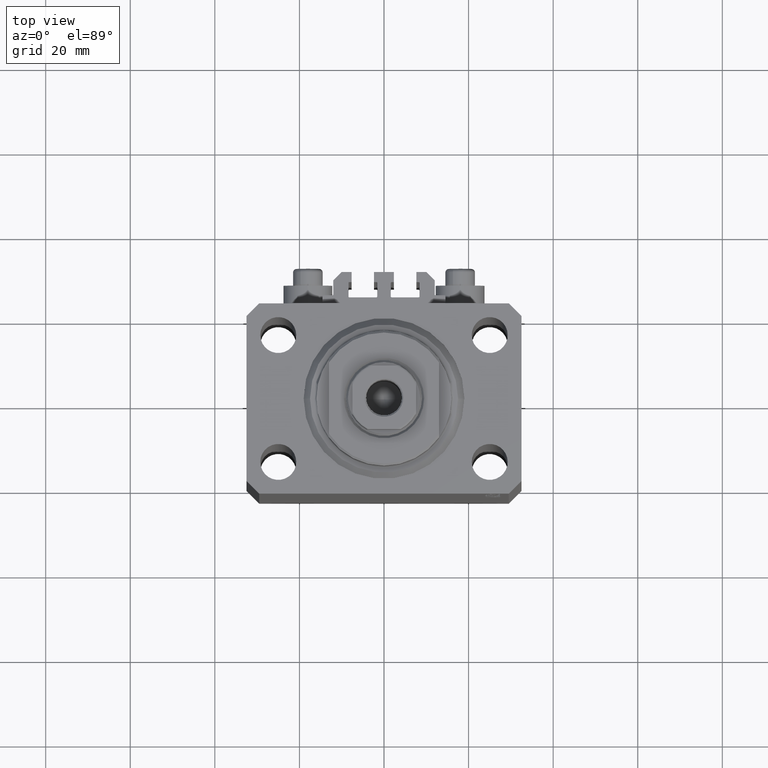
[diagram: clean part render]
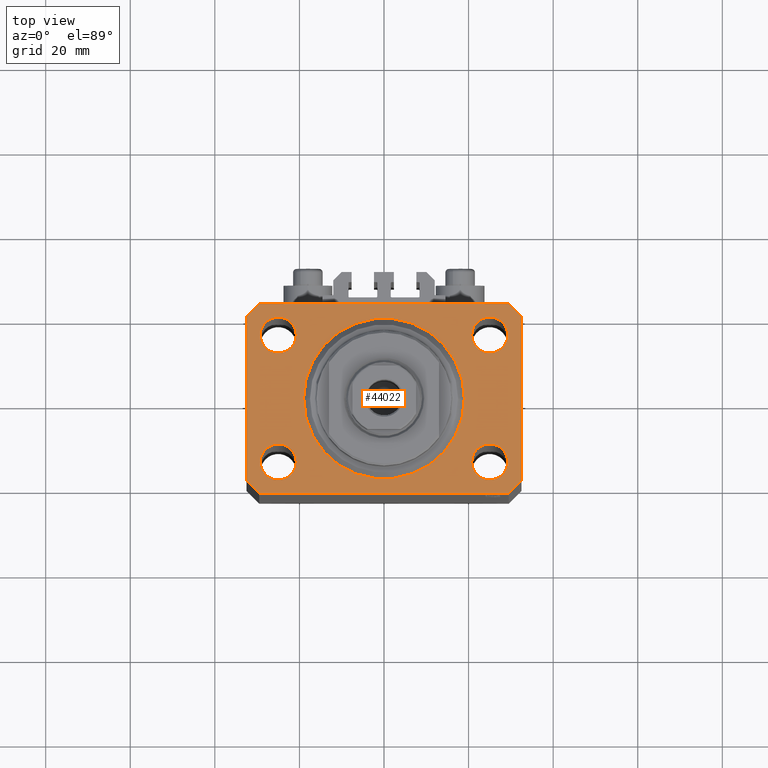
[diagram: same view with one face highlighted and labeled with its STEP entity id]
A machine part, top view. The second image highlights one B-rep face of the part: STEP entity #44022.
In plain terms, the highlighted planar face has unit normal (0, 0, 1).
Its self-contained STEP definition (entity closure, byte-faithful):
#241 = CARTESIAN_POINT ( 'NONE',  ( 29.24999999995729283, 14.99999999999999289, 0.000000000000000000 ) ) ;
#679 = EDGE_CURVE ( 'NONE', #37692, #45115, #715, .T. ) ;
#715 = LINE ( 'NONE', #15313, #4564 ) ;
#953 = CIRCLE ( 'NONE', #28475, 4.249999999976314058 ) ;
#1167 = CARTESIAN_POINT ( 'NONE',  ( 24.99999999999999289, -15.00000000000000355, 0.000000000000000000 ) ) ;
#2010 = ORIENTED_EDGE ( 'NONE', *, *, #20796, .F. ) ;
#2098 = CARTESIAN_POINT ( 'NONE',  ( -25.00000000000000000, 14.99999999999999645, 0.000000000000000000 ) ) ;
#2522 = EDGE_CURVE ( 'NONE', #42080, #27430, #3094, .T. ) ;
#3094 = CIRCLE ( 'NONE', #13791, 19.00000000000000000 ) ;
#3217 = CARTESIAN_POINT ( 'NONE',  ( -29.49999999999650413, 22.49999999999949907, 0.000000000000000000 ) ) ;
#3255 = EDGE_CURVE ( 'NONE', #32508, #37692, #21368, .T. ) ;
#3706 = DIRECTION ( 'NONE',  ( 0.7071067811865483499, 0.7071067811865466846, 0.000000000000000000 ) ) ;
#4301 = CARTESIAN_POINT ( 'NONE',  ( 0.000000000000000000, 0.000000000000000000, 0.000000000000000000 ) ) ;
#4564 = VECTOR ( 'NONE', #11739, 1000.000000000000114 ) ;
#4649 = LINE ( 'NONE', #12771, #43411 ) ;
#5468 = DIRECTION ( 'NONE',  ( 0.000000000000000000, 0.000000000000000000, 1.000000000000000000 ) ) ;
#5688 = CIRCLE ( 'NONE', #20989, 4.250000000040370374 ) ;
#6759 = ORIENTED_EDGE ( 'NONE', *, *, #16691, .F. ) ;
#6813 = CARTESIAN_POINT ( 'NONE',  ( 29.49999999999650413, -22.49999999999949196, 0.000000000000000000 ) ) ;
#6971 = VECTOR ( 'NONE', #40499, 1000.000000000000000 ) ;
#7300 = DIRECTION ( 'NONE',  ( 1.000000000000000000, 0.000000000000000000, 0.000000000000000000 ) ) ;
#7357 = VERTEX_POINT ( 'NONE', #40526 ) ;
#7384 = VERTEX_POINT ( 'NONE', #42431 ) ;
#7455 = CIRCLE ( 'NONE', #40309, 4.250000000021375790 ) ;
#7618 = CARTESIAN_POINT ( 'NONE',  ( -29.49999999999650413, -22.49999999999949907, 0.000000000000000000 ) ) ;
#8015 = EDGE_CURVE ( 'NONE', #7357, #33459, #22210, .T. ) ;
#8714 = ORIENTED_EDGE ( 'NONE', *, *, #40645, .F. ) ;
#9156 = AXIS2_PLACEMENT_3D ( 'NONE', #25374, #32563, #32785 ) ;
#9196 = VERTEX_POINT ( 'NONE', #6813 ) ;
#10061 = ORIENTED_EDGE ( 'NONE', *, *, #26776, .F. ) ;
#10197 = DIRECTION ( 'NONE',  ( 0.000000000000000000, 0.000000000000000000, 1.000000000000000000 ) ) ;
#10444 = DIRECTION ( 'NONE',  ( 1.000000000000000000, 0.000000000000000000, 0.000000000000000000 ) ) ;
#11314 = LINE ( 'NONE', #25657, #6971 ) ;
#11652 = VECTOR ( 'NONE', #33117, 1000.000000000000000 ) ;
#11739 = DIRECTION ( 'NONE',  ( -0.7071067811865474617, -0.7071067811865474617, 0.000000000000000000 ) ) ;
#12087 = CIRCLE ( 'NONE', #27368, 4.249999999957291053 ) ;
#12709 = CARTESIAN_POINT ( 'NONE',  ( 32.49999999999702993, 19.49999999999945999, 0.000000000000000000 ) ) ;
#12748 = DIRECTION ( 'NONE',  ( 1.000000000000000000, 0.000000000000000000, 0.000000000000000000 ) ) ;
#12771 = CARTESIAN_POINT ( 'NONE',  ( -32.49999999999650413, -19.49999999999949907, 0.000000000000000000 ) ) ;
#13033 = EDGE_CURVE ( 'NONE', #9196, #14229, #40303, .T. ) ;
#13149 = DIRECTION ( 'NONE',  ( 1.000000000000000000, 0.000000000000000000, 0.000000000000000000 ) ) ;
#13728 = DIRECTION ( 'NONE',  ( -1.000000000000000000, -3.528251137580330676E-16, 0.000000000000000000 ) ) ;
#13791 = AXIS2_PLACEMENT_3D ( 'NONE', #4301, #15548, #29900 ) ;
#13793 = DIRECTION ( 'NONE',  ( 0.000000000000000000, 0.000000000000000000, 1.000000000000000000 ) ) ;
#13922 = FACE_BOUND ( 'NONE', #38735, .T. ) ;
#14229 = VERTEX_POINT ( 'NONE', #16099 ) ;
#14730 = EDGE_LOOP ( 'NONE', ( #2010, #22629 ) ) ;
#15313 = CARTESIAN_POINT ( 'NONE',  ( -29.49999999999650413, 22.49999999999949907, 0.000000000000000000 ) ) ;
#15548 = DIRECTION ( 'NONE',  ( 0.000000000000000000, 0.000000000000000000, 1.000000000000000000 ) ) ;
#16044 = AXIS2_PLACEMENT_3D ( 'NONE', #40376, #47097, #47326 ) ;
#16079 = EDGE_LOOP ( 'NONE', ( #33129, #6759 ) ) ;
#16099 = CARTESIAN_POINT ( 'NONE',  ( 32.49999999999651124, -19.49999999999949196, 0.000000000000000000 ) ) ;
#16515 = EDGE_CURVE ( 'NONE', #33459, #7357, #5688, .T. ) ;
#16691 = EDGE_CURVE ( 'NONE', #35111, #26598, #22480, .T. ) ;
#16796 = CARTESIAN_POINT ( 'NONE',  ( -24.99999999999999289, -15.00000000000000355, 0.000000000000000000 ) ) ;
#17745 = PLANE ( 'NONE',  #9156 ) ;
#17792 = CARTESIAN_POINT ( 'NONE',  ( 29.49999999999707967, 22.49999999999952038, 0.000000000000000000 ) ) ;
#17810 = VECTOR ( 'NONE', #3706, 1000.000000000000000 ) ;
#17812 = EDGE_CURVE ( 'NONE', #21284, #9196, #35867, .T. ) ;
#17958 = CARTESIAN_POINT ( 'NONE',  ( -32.49999999999650413, -19.49999999999949907, 0.000000000000000000 ) ) ;
#18298 = CARTESIAN_POINT ( 'NONE',  ( -20.74999999995962341, -15.00000000000000355, 0.000000000000000000 ) ) ;
#19479 = VERTEX_POINT ( 'NONE', #17958 ) ;
#19613 = ORIENTED_EDGE ( 'NONE', *, *, #2522, .F. ) ;
#20064 = CARTESIAN_POINT ( 'NONE',  ( -24.99999999999999289, -15.00000000000000355, 0.000000000000000000 ) ) ;
#20194 = VERTEX_POINT ( 'NONE', #241 ) ;
#20796 = EDGE_CURVE ( 'NONE', #20194, #7384, #43122, .T. ) ;
#20818 = EDGE_LOOP ( 'NONE', ( #21851, #26643 ) ) ;
#20989 = AXIS2_PLACEMENT_3D ( 'NONE', #16796, #34741, #42882 ) ;
#21284 = VERTEX_POINT ( 'NONE', #31094 ) ;
#21368 = LINE ( 'NONE', #17792, #27542 ) ;
#21792 = FACE_BOUND ( 'NONE', #16079, .T. ) ;
#21851 = ORIENTED_EDGE ( 'NONE', *, *, #16515, .F. ) ;
#22020 = FACE_OUTER_BOUND ( 'NONE', #31170, .T. ) ;
#22210 = CIRCLE ( 'NONE', #40558, 4.250000000040370374 ) ;
#22480 = CIRCLE ( 'NONE', #27092, 4.250000000021375790 ) ;
#22629 = ORIENTED_EDGE ( 'NONE', *, *, #27048, .F. ) ;
#23690 = ORIENTED_EDGE ( 'NONE', *, *, #34022, .F. ) ;
#24107 = ORIENTED_EDGE ( 'NONE', *, *, #33450, .T. ) ;
#24607 = ORIENTED_EDGE ( 'NONE', *, *, #47286, .T. ) ;
#24676 = FACE_BOUND ( 'NONE', #20818, .T. ) ;
#24782 = ORIENTED_EDGE ( 'NONE', *, *, #13033, .T. ) ;
#24811 = DIRECTION ( 'NONE',  ( 1.000000000000000000, 0.000000000000000000, 0.000000000000000000 ) ) ;
#25005 = CARTESIAN_POINT ( 'NONE',  ( -25.00000000000000000, 14.99999999999999645, 0.000000000000000000 ) ) ;
#25025 = CARTESIAN_POINT ( 'NONE',  ( 19.00000000000000000, 0.000000000000000000, 0.000000000000000000 ) ) ;
#25075 = AXIS2_PLACEMENT_3D ( 'NONE', #30922, #45526, #12748 ) ;
#25109 = VECTOR ( 'NONE', #46291, 1000.000000000000000 ) ;
#25297 = EDGE_CURVE ( 'NONE', #26598, #35111, #7455, .T. ) ;
#25374 = CARTESIAN_POINT ( 'NONE',  ( 0.000000000000000000, 0.000000000000000000, 0.000000000000000000 ) ) ;
#25466 = LINE ( 'NONE', #29298, #11652 ) ;
#25608 = FACE_BOUND ( 'NONE', #29713, .T. ) ;
#25657 = CARTESIAN_POINT ( 'NONE',  ( 32.49999999999702993, 19.49999999999945999, 0.000000000000000000 ) ) ;
#25794 = DIRECTION ( 'NONE',  ( 1.000000000000000000, 1.176083712526788232E-16, 0.000000000000000000 ) ) ;
#25899 = CARTESIAN_POINT ( 'NONE',  ( -20.74999999997862687, 14.99999999999999645, 0.000000000000000000 ) ) ;
#26598 = VERTEX_POINT ( 'NONE', #25899 ) ;
#26643 = ORIENTED_EDGE ( 'NONE', *, *, #8015, .F. ) ;
#26776 = EDGE_CURVE ( 'NONE', #34166, #40948, #34237, .T. ) ;
#27048 = EDGE_CURVE ( 'NONE', #7384, #20194, #12087, .T. ) ;
#27092 = AXIS2_PLACEMENT_3D ( 'NONE', #2098, #41814, #38227 ) ;
#27234 = DIRECTION ( 'NONE',  ( 1.000000000000000000, 0.000000000000000000, 0.000000000000000000 ) ) ;
#27368 = AXIS2_PLACEMENT_3D ( 'NONE', #28826, #10197, #13149 ) ;
#27430 = VERTEX_POINT ( 'NONE', #25025 ) ;
#27542 = VECTOR ( 'NONE', #13728, 1000.000000000000000 ) ;
#27757 = EDGE_CURVE ( 'NONE', #14229, #31328, #28570, .T. ) ;
#28475 = AXIS2_PLACEMENT_3D ( 'NONE', #1167, #35589, #24811 ) ;
#28506 = FACE_BOUND ( 'NONE', #14730, .T. ) ;
#28570 = LINE ( 'NONE', #43174, #25109 ) ;
#28585 = AXIS2_PLACEMENT_3D ( 'NONE', #42287, #35784, #10444 ) ;
#28602 = CARTESIAN_POINT ( 'NONE',  ( 29.49999999999650413, -22.49999999999949196, 0.000000000000000000 ) ) ;
#28826 = CARTESIAN_POINT ( 'NONE',  ( 25.00000000000000000, 14.99999999999999289, 0.000000000000000000 ) ) ;
#29298 = CARTESIAN_POINT ( 'NONE',  ( -32.49999999999650413, 19.49999999999949907, 0.000000000000000000 ) ) ;
#29713 = EDGE_LOOP ( 'NONE', ( #10061, #23690 ) ) ;
#29900 = DIRECTION ( 'NONE',  ( 1.000000000000000000, 0.000000000000000000, 0.000000000000000000 ) ) ;
#30922 = CARTESIAN_POINT ( 'NONE',  ( 24.99999999999999289, -15.00000000000000355, 0.000000000000000000 ) ) ;
#31094 = CARTESIAN_POINT ( 'NONE',  ( -29.49999999999650413, -22.49999999999949907, 0.000000000000000000 ) ) ;
#31170 = EDGE_LOOP ( 'NONE', ( #36914, #40734, #24107, #24607, #34182, #24782, #38036, #42357 ) ) ;
#31328 = VERTEX_POINT ( 'NONE', #12709 ) ;
#32508 = VERTEX_POINT ( 'NONE', #33645 ) ;
#32563 = DIRECTION ( 'NONE',  ( 0.000000000000000000, 0.000000000000000000, 1.000000000000000000 ) ) ;
#32785 = DIRECTION ( 'NONE',  ( 1.000000000000000000, 0.000000000000000000, -0.000000000000000000 ) ) ;
#33117 = DIRECTION ( 'NONE',  ( 0.000000000000000000, -1.000000000000000000, 0.000000000000000000 ) ) ;
#33129 = ORIENTED_EDGE ( 'NONE', *, *, #25297, .F. ) ;
#33450 = EDGE_CURVE ( 'NONE', #45115, #19479, #25466, .T. ) ;
#33459 = VERTEX_POINT ( 'NONE', #18298 ) ;
#33645 = CARTESIAN_POINT ( 'NONE',  ( 29.49999999999707967, 22.49999999999952038, 0.000000000000000000 ) ) ;
#34022 = EDGE_CURVE ( 'NONE', #40948, #34166, #953, .T. ) ;
#34166 = VERTEX_POINT ( 'NONE', #47064 ) ;
#34182 = ORIENTED_EDGE ( 'NONE', *, *, #17812, .T. ) ;
#34237 = CIRCLE ( 'NONE', #25075, 4.249999999976314058 ) ;
#34738 = CARTESIAN_POINT ( 'NONE',  ( 20.75000000002367884, -15.00000000000000355, 0.000000000000000000 ) ) ;
#34741 = DIRECTION ( 'NONE',  ( 0.000000000000000000, 0.000000000000000000, 1.000000000000000000 ) ) ;
#35111 = VERTEX_POINT ( 'NONE', #37415 ) ;
#35589 = DIRECTION ( 'NONE',  ( 0.000000000000000000, 0.000000000000000000, 1.000000000000000000 ) ) ;
#35784 = DIRECTION ( 'NONE',  ( 0.000000000000000000, 0.000000000000000000, 1.000000000000000000 ) ) ;
#35867 = LINE ( 'NONE', #7618, #44694 ) ;
#36914 = ORIENTED_EDGE ( 'NONE', *, *, #3255, .T. ) ;
#37415 = CARTESIAN_POINT ( 'NONE',  ( -29.25000000002137668, 14.99999999999999645, 0.000000000000000000 ) ) ;
#37692 = VERTEX_POINT ( 'NONE', #3217 ) ;
#38036 = ORIENTED_EDGE ( 'NONE', *, *, #27757, .T. ) ;
#38227 = DIRECTION ( 'NONE',  ( 1.000000000000000000, 0.000000000000000000, 0.000000000000000000 ) ) ;
#38369 = DIRECTION ( 'NONE',  ( 0.7071067811865474617, -0.7071067811865474617, 0.000000000000000000 ) ) ;
#38735 = EDGE_LOOP ( 'NONE', ( #8714, #19613 ) ) ;
#39817 = CIRCLE ( 'NONE', #16044, 19.00000000000000000 ) ;
#40303 = LINE ( 'NONE', #28602, #17810 ) ;
#40309 = AXIS2_PLACEMENT_3D ( 'NONE', #25005, #13793, #7300 ) ;
#40376 = CARTESIAN_POINT ( 'NONE',  ( 0.000000000000000000, 0.000000000000000000, 0.000000000000000000 ) ) ;
#40499 = DIRECTION ( 'NONE',  ( -0.7071067811865344721, 0.7071067811865606734, 0.000000000000000000 ) ) ;
#40526 = CARTESIAN_POINT ( 'NONE',  ( -29.25000000004036593, -15.00000000000000355, 0.000000000000000000 ) ) ;
#40558 = AXIS2_PLACEMENT_3D ( 'NONE', #20064, #5468, #27234 ) ;
#40645 = EDGE_CURVE ( 'NONE', #27430, #42080, #39817, .T. ) ;
#40734 = ORIENTED_EDGE ( 'NONE', *, *, #679, .T. ) ;
#40886 = EDGE_CURVE ( 'NONE', #31328, #32508, #11314, .T. ) ;
#40948 = VERTEX_POINT ( 'NONE', #34738 ) ;
#41814 = DIRECTION ( 'NONE',  ( 0.000000000000000000, 0.000000000000000000, 1.000000000000000000 ) ) ;
#42080 = VERTEX_POINT ( 'NONE', #44743 ) ;
#42287 = CARTESIAN_POINT ( 'NONE',  ( 25.00000000000000000, 14.99999999999999289, 0.000000000000000000 ) ) ;
#42357 = ORIENTED_EDGE ( 'NONE', *, *, #40886, .T. ) ;
#42431 = CARTESIAN_POINT ( 'NONE',  ( 20.75000000004271072, 14.99999999999999289, 0.000000000000000000 ) ) ;
#42882 = DIRECTION ( 'NONE',  ( 1.000000000000000000, 0.000000000000000000, 0.000000000000000000 ) ) ;
#43122 = CIRCLE ( 'NONE', #28585, 4.249999999957291053 ) ;
#43174 = CARTESIAN_POINT ( 'NONE',  ( 32.49999999999651124, -19.49999999999949196, 0.000000000000000000 ) ) ;
#43411 = VECTOR ( 'NONE', #38369, 1000.000000000000114 ) ;
#44022 = ADVANCED_FACE ( 'NONE', ( #13922, #24676, #25608, #28506, #21792, #22020 ), #17745, .T. ) ;
#44694 = VECTOR ( 'NONE', #25794, 1000.000000000000000 ) ;
#44743 = CARTESIAN_POINT ( 'NONE',  ( -19.00000000000000000, 2.326828918379970970E-15, 0.000000000000000000 ) ) ;
#45115 = VERTEX_POINT ( 'NONE', #46713 ) ;
#45526 = DIRECTION ( 'NONE',  ( 0.000000000000000000, 0.000000000000000000, 1.000000000000000000 ) ) ;
#46291 = DIRECTION ( 'NONE',  ( 1.334402673828349134E-14, 1.000000000000000000, 0.000000000000000000 ) ) ;
#46713 = CARTESIAN_POINT ( 'NONE',  ( -32.49999999999650413, 19.49999999999949907, 0.000000000000000000 ) ) ;
#47064 = CARTESIAN_POINT ( 'NONE',  ( 29.24999999997631051, -15.00000000000000355, 0.000000000000000000 ) ) ;
#47097 = DIRECTION ( 'NONE',  ( 0.000000000000000000, 0.000000000000000000, 1.000000000000000000 ) ) ;
#47286 = EDGE_CURVE ( 'NONE', #19479, #21284, #4649, .T. ) ;
#47326 = DIRECTION ( 'NONE',  ( 1.000000000000000000, 0.000000000000000000, 0.000000000000000000 ) ) ;